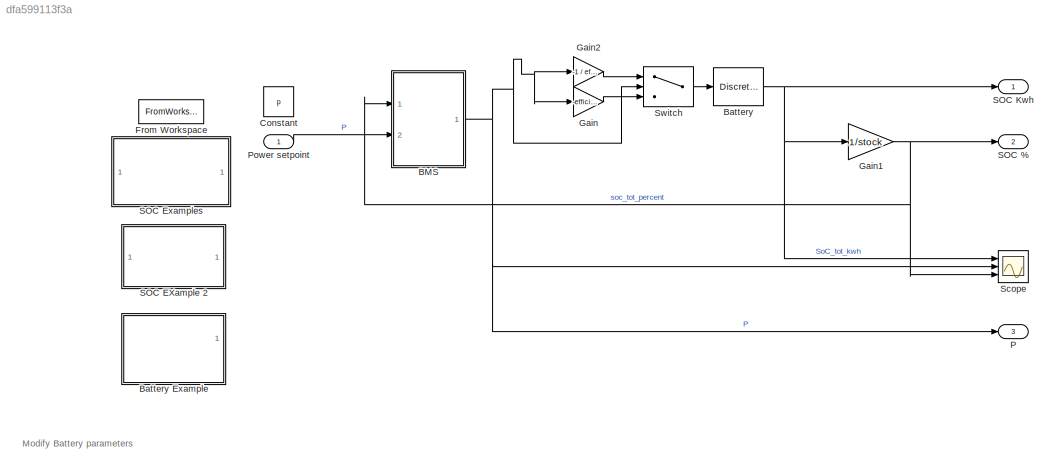
MODEL slx_dfa599113f3a
KIND model
CONFIG AbsTol = auto
CONFIG EnableMultiTasking = off
CONFIG FixedStep = auto
CONFIG MaxStep = auto
CONFIG MinStep = auto
CONFIG RelTol = 1e-3
CONFIG SampleTimeConstraint = Unconstrained
CONFIG SolverName = VariableStepAuto
CONFIG StartTime = 0.0
CONFIG StopTime = 10.0
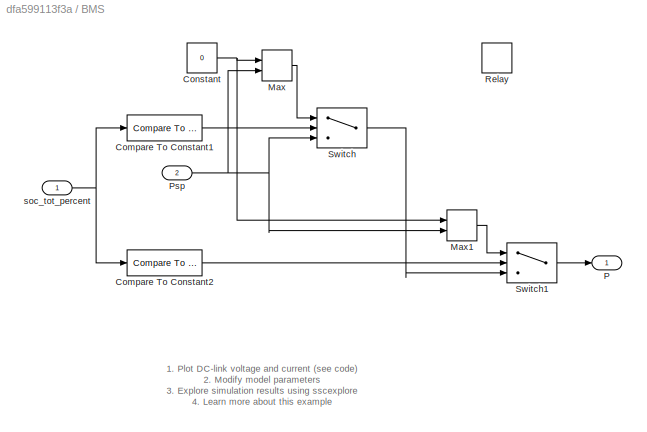
BLOCK [SubSystem] BMS
  Ports = [2, 1]
  RequestExecContextInheritance = off
BLOCK [Reference] BMS/Compare To Constant1  REF=simulink/Logic and Bit
Operations/Compare
To Constant
  Ports = [1, 1]
  SourceBlock = simulink/Logic and Bit\nOperations/Compare\nTo Constant
  SourceProductBaseCode = SL
  SourceType = Compare To Constant
BLOCK [Reference] BMS/Compare To Constant2  REF=simulink/Logic and Bit
Operations/Compare
To Constant
  Ports = [1, 1]
  SourceBlock = simulink/Logic and Bit\nOperations/Compare\nTo Constant
  SourceProductBaseCode = SL
  SourceType = Compare To Constant
BLOCK [Constant] BMS/Constant
  Value = 0
BLOCK [MinMax] BMS/Max
  Function = max
  Inputs = 2
  Ports = [2, 1]
BLOCK [MinMax] BMS/Max1
  Inputs = 2
  Ports = [2, 1]
BLOCK [Outport] BMS/P
BLOCK [Inport] BMS/Psp
  Port = 2
BLOCK [Relay] BMS/Relay
BLOCK [Switch] BMS/Switch
  Criteria = u2 > Threshold
  InputSameDT = off
  SaturateOnIntegerOverflow = off
BLOCK [Switch] BMS/Switch1
  Criteria = u2 > Threshold
  InputSameDT = off
  SaturateOnIntegerOverflow = off
BLOCK [Inport] BMS/soc_tot_percent
BLOCK [DiscreteIntegrator] Battery
  ICPrevOutput = DiscIntNeverNeededParam
  ICPrevScaledInput = DiscIntNeverNeededParam
  InitialCondition = stock*0.45
  InitialConditionSetting = Auto
  Ports = [1, 1]
  SampleTime = -1
  gainval = 1/3600
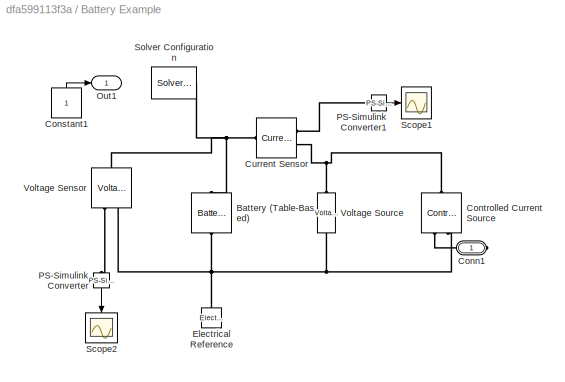
BLOCK [SubSystem] Battery Example
  Commented = on
  Ports = [0, 1, 0, 0, 0, 0, 1]
  RequestExecContextInheritance = off
BLOCK [Reference] Battery Example/Battery (Table-Based)  REF=ee_lib/Sources/Battery
(Table-Based)
  NameLocation = right
  Ports = [0, 0, 0, 0, 0, 1, 1]
  SourceBlock = ee_lib/Sources/Battery\n(Table-Based)
  SourceProductBaseCode = PS
  SourceType = Battery\n(Table-Based)
BLOCK [PMIOPort] Battery Example/Conn1
  Side = Right
BLOCK [Constant] Battery Example/Constant1
  NameLocation = right
BLOCK [Reference] Battery Example/Controlled Current Source  REF=fl_lib/Electrical/Electrical Sources/Controlled Current
Source
  NameLocation = right
  Ports = [0, 0, 0, 0, 0, 1, 2]
  SourceBlock = fl_lib/Electrical/Electrical Sources/Controlled Current\nSource
  SourceProductBaseCode = PW,SS,VE
  SourceType = Controlled Current\nSource
BLOCK [Reference] Battery Example/Current Sensor  REF=fl_lib/Electrical/Electrical Sensors/Current Sensor
  Ports = [0, 0, 0, 0, 0, 1, 2]
  SourceBlock = fl_lib/Electrical/Electrical Sensors/Current Sensor
  SourceProductBaseCode = PW,SS,VE
  SourceType = Current Sensor
BLOCK [Reference] Battery Example/Electrical Reference  REF=fl_lib/Electrical/Electrical Elements/Electrical Reference
  NameLocation = right
  Ports = [0, 0, 0, 0, 0, 1]
  SourceBlock = fl_lib/Electrical/Electrical Elements/Electrical Reference
  SourceProductBaseCode = PW,SS,VE
  SourceType = Electrical Reference
BLOCK [Outport] Battery Example/Out1
BLOCK [Reference] Battery Example/PS-Simulink Converter  REF=nesl_utility/PS-Simulink
Converter
  NameLocation = left
  Ports = [0, 1, 0, 0, 0, 1]
  SourceBlock = nesl_utility/PS-Simulink\nConverter
  SourceProductBaseCode = SS,PW,VE
  SourceType = PS-Simulink\nConverter
BLOCK [Reference] Battery Example/PS-Simulink Converter1  REF=nesl_utility/PS-Simulink
Converter
  Ports = [0, 1, 0, 0, 0, 1]
  SourceBlock = nesl_utility/PS-Simulink\nConverter
  SourceProductBaseCode = SS,PW,VE
  SourceType = PS-Simulink\nConverter
BLOCK [Scope] Battery Example/Scope1
  Floating = off
  NumInputPorts = 1
  Ports = [1]
  ScopeSpecificationString = Simulink.scopes.TimeScopeBlockCfg('CurrentConfiguration', extmgr.ConfigurationSet(extmgr.Configuration('Core','General UI',true),extmgr.Configuration('Core','Source UI',true),extmgr.Configuration('Sources','WiredSimulink',true,'DataLoggingVariableName','ScopeData1'),extmgr.Configuration('Visuals','Time Domain',true,'SerializedDisplays',{struct('MinYLimReal','0','MaxYLimReal','1.0625','YLabelReal',...<+1735ch>
BLOCK [Scope] Battery Example/Scope2
  Floating = off
  NameLocation = left
  NumInputPorts = 1
  Ports = [1]
  ScopeSpecificationString = Simulink.scopes.TimeScopeBlockCfg('CurrentConfiguration', extmgr.ConfigurationSet(extmgr.Configuration('Core','General UI',true),extmgr.Configuration('Core','Source UI',true),extmgr.Configuration('Sources','WiredSimulink',true,'DataLoggingVariableName','ScopeData2'),extmgr.Configuration('Visuals','Time Domain',true,'SerializedDisplays',{struct('MinYLimReal','0','MaxYLimReal','1.0625','YLabelReal',...<+1735ch>
BLOCK [Reference] Battery Example/Solver Configuration  REF=nesl_utility/Solver
Configuration
  Ports = [0, 0, 0, 0, 0, 0, 1]
  SourceBlock = nesl_utility/Solver\nConfiguration
  SourceProductBaseCode = SS,PW,VE
  SourceType = Solver\nConfiguration
BLOCK [Reference] Battery Example/Voltage Sensor  REF=fl_lib/Electrical/Electrical Sensors/Voltage Sensor
  NameLocation = right
  Ports = [0, 0, 0, 0, 0, 1, 2]
  SourceBlock = fl_lib/Electrical/Electrical Sensors/Voltage Sensor
  SourceProductBaseCode = PW,SS,VE
  SourceType = Voltage Sensor
BLOCK [Reference] Battery Example/Voltage Source  REF=ee_lib/Sources/Voltage Source
  NameLocation = right
  Ports = [0, 0, 0, 0, 0, 1, 1]
  SourceBlock = ee_lib/Sources/Voltage Source
  SourceProductBaseCode = PS
  SourceType = Voltage Source
BLOCK [Constant] Constant
  Value = p
BLOCK [FromWorkspace] From Workspace
  Commented = on
  VariableName = ts
BLOCK [Gain] Gain
  Gain = -efficiency_charge
BLOCK [Gain] Gain1
  Gain = 1/stock
BLOCK [Gain] Gain2
  Gain = -1 / efficiency_discharge
BLOCK [Outport] P
  Port = 3
BLOCK [Inport] Power setpoint
BLOCK [Outport] SOC %
  Port = 2
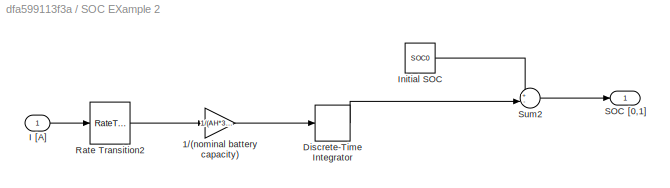
BLOCK [SubSystem] SOC EXample 2
  Commented = on
  Ports = [1, 1]
  RequestExecContextInheritance = off
BLOCK [Gain] SOC EXample 2/1//(nominal battery capacity)
  Commented = on
  Gain = 1/(AH*3600)
BLOCK [DiscreteIntegrator] SOC EXample 2/Discrete-Time Integrator
  ICPrevOutput = DiscIntNeverNeededParam
  ICPrevScaledInput = DiscIntNeverNeededParam
  InitialConditionSetting = Auto
  Ports = [1, 1]
  SampleTime = -1
BLOCK [Inport] SOC EXample 2/I [A]
BLOCK [Constant] SOC EXample 2/Initial SOC
  Commented = on
  Value = SOC0
BLOCK [RateTransition] SOC EXample 2/Rate Transition2
BLOCK [Outport] SOC EXample 2/SOC [0,1]
  VectorParamsAs1DForOutWhenUnconnected = off
BLOCK [Sum] SOC EXample 2/Sum2
  Inputs = +-
  Ports = [2, 1]
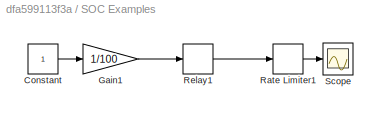
BLOCK [SubSystem] SOC Examples
  Commented = on
  Ports = []
  RequestExecContextInheritance = off
BLOCK [Constant] SOC Examples/Constant
BLOCK [Gain] SOC Examples/Gain1
  Gain = 1/100
BLOCK [RateLimiter] SOC Examples/Rate Limiter1
  FallingSlewLimit = -100
  RisingSlewLimit = 100
  SampleTimeMode = inherited
BLOCK [Relay] SOC Examples/Relay1
  OffOutputValue = -200
  OffSwitchValue = 0.4
  OnOutputValue = 0
  OnSwitchValue = 0.8
BLOCK [Scope] SOC Examples/Scope
  Floating = off
  NumInputPorts = 1
  Ports = [1]
  ScopeSpecificationString = Simulink.scopes.TimeScopeBlockCfg('CurrentConfiguration', extmgr.ConfigurationSet(extmgr.Configuration('Core','General UI',true),extmgr.Configuration('Core','Source UI',true),extmgr.Configuration('Sources','WiredSimulink',true,'DataLoggingVariableName','ScopeData1'),extmgr.Configuration('Visuals','Time Domain',true),extmgr.Configuration('Tools','Plot Navigation',true),extmgr.Configuration('Tools',...<+40ch>
BLOCK [Outport] SOC Kwh
BLOCK [Scope] Scope
  Floating = off
  NumInputPorts = 3
  Ports = [3]
  ScopeSpecificationString = Simulink.scopes.TimeScopeBlockCfg('CurrentConfiguration', extmgr.ConfigurationSet(extmgr.Configuration('Core','General UI',true),extmgr.Configuration('Core','Source UI',true),extmgr.Configuration('Sources','WiredSimulink',true,'DataLoggingVariableName','ScopeData1'),extmgr.Configuration('Visuals','Time Domain',true,'SerializedDisplays',{struct('MinYLimReal','2178008.62363','MaxYLimReal','2195129.4...<+3235ch>
BLOCK [Switch] Switch
  Criteria = u2 > Threshold
  InputSameDT = off
  SaturateOnIntegerOverflow = off
ANNOTATION (root): Modify Battery parameters
ANNOTATION BMS: 1. Plot DC-link voltage and current ( see code ) 2. Modify model parameters 3. Explore simulation results using sscexplore 4. Learn more about this example
LINE BMS/Compare To Constant1:1 -> BMS/Switch:2
LINE BMS/Compare To Constant2:1 -> BMS/Switch1:2
NET BMS/Constant:1 -> BMS/Max1:1, BMS/Max:1
LINE BMS/Max1:1 -> BMS/Switch1:1
LINE BMS/Max:1 -> BMS/Switch:1
NET BMS/Psp:1 -> BMS/Max1:2, BMS/Max:2, BMS/Switch:3
LINE BMS/Switch1:1 -> BMS/P:1
LINE BMS/Switch:1 -> BMS/Switch1:3
NET BMS/soc_tot_percent:1 -> BMS/Compare To Constant1:1, BMS/Compare To Constant2:1
NET BMS:1 -> Gain2:1, Gain:1, P:1, Scope:2, Switch:2
LINE Battery Example/Constant1:1 -> Battery Example/Out1:1
LINE Battery Example/PS-Simulink Converter1:1 -> Battery Example/Scope1:1
LINE Battery Example/PS-Simulink Converter:1 -> Battery Example/Scope2:1
NET Battery:1 -> Gain1:1, SOC Kwh:1, Scope:1
NET Gain1:1 -> BMS:1, SOC %:1, Scope:3
LINE Gain2:1 -> Switch:1
LINE Gain:1 -> Switch:3
LINE Power setpoint:1 -> BMS:2
LINE SOC EXample 2/1//(nominal battery capacity):1 -> SOC EXample 2/Discrete-Time Integrator:1
LINE SOC EXample 2/Discrete-Time Integrator:1 -> SOC EXample 2/Sum2:2
LINE SOC EXample 2/I [A]:1 -> SOC EXample 2/Rate Transition2:1
LINE SOC EXample 2/Initial SOC:1 -> SOC EXample 2/Sum2:1
LINE SOC EXample 2/Rate Transition2:1 -> SOC EXample 2/1//(nominal battery capacity):1
LINE SOC EXample 2/Sum2:1 -> SOC EXample 2/SOC [0,1]:1
LINE SOC Examples/Constant:1 -> SOC Examples/Gain1:1
LINE SOC Examples/Gain1:1 -> SOC Examples/Relay1:1
LINE SOC Examples/Rate Limiter1:1 -> SOC Examples/Scope:1
LINE SOC Examples/Relay1:1 -> SOC Examples/Rate Limiter1:1
LINE Switch:1 -> Battery:1
PNET net1: Battery Example/Battery (Table-Based):LConn1 -- Battery Example/Current Sensor:LConn1 -- Battery Example/Solver Configuration:RConn1 -- Battery Example/Voltage Sensor:LConn1
PNET net2: Battery Example/Battery (Table-Based):RConn1 -- Battery Example/Controlled Current Source:RConn2 -- Battery Example/Electrical Reference:LConn1 -- Battery Example/Voltage Sensor:RConn2 -- Battery Example/Voltage Source:RConn1
PLINE Battery Example/Conn1:RConn1 -- Battery Example/Controlled Current Source:RConn1
PNET net3: Battery Example/Controlled Current Source:LConn1 -- Battery Example/Current Sensor:RConn2 -- Battery Example/Voltage Source:LConn1
PLINE Battery Example/Current Sensor:RConn1 -- Battery Example/PS-Simulink Converter1:LConn1
PLINE Battery Example/PS-Simulink Converter:LConn1 -- Battery Example/Voltage Sensor:RConn1
note: NET lines group one-source signal fan-out (src -> all destinations, sorted); 1:1 wires keep LINE; PNET lines group multi-terminal physical nets as a canonical sorted terminal list (undirected conserving connections); 2-terminal nets keep the pairwise PLINE form
